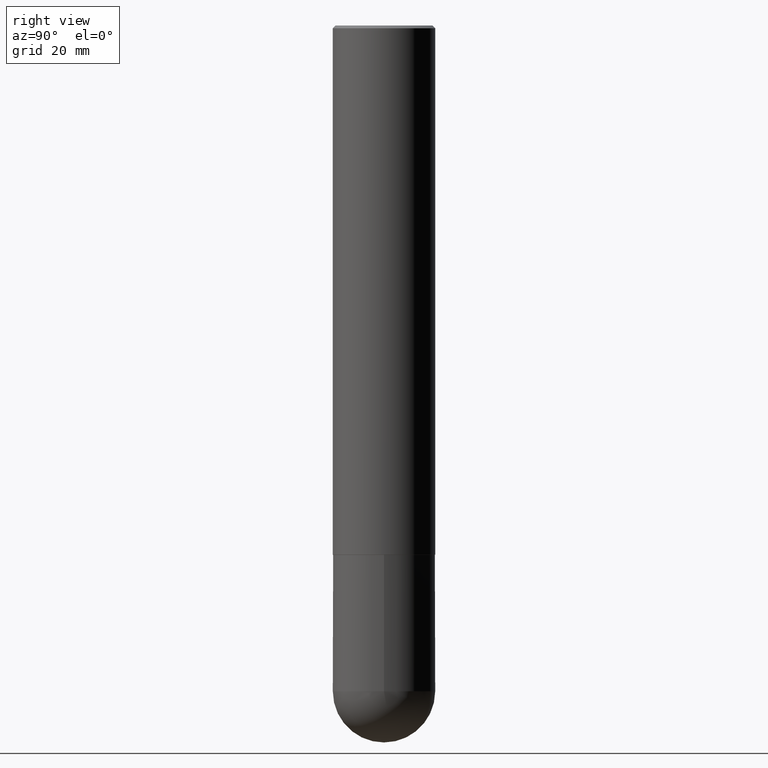
[diagram: clean part render]
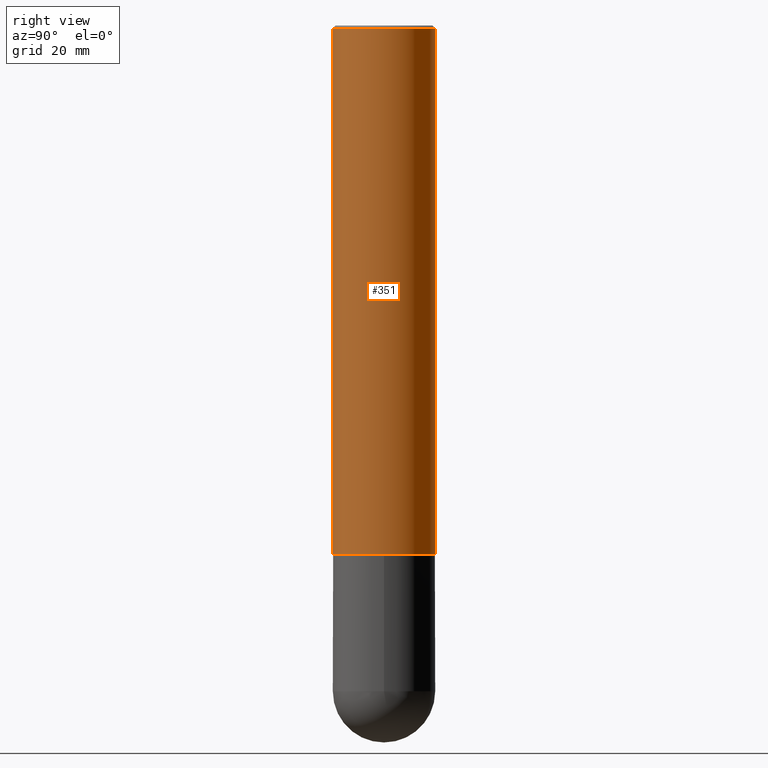
[diagram: same view with one face highlighted and labeled with its STEP entity id]
A machine part, right view. The second image highlights one B-rep face of the part: STEP entity #351.
In plain terms, the highlighted cylindrical surface (partial cylindrical patch) has radius 9.525 mm, axis along (-0, 0, 1).
Its self-contained STEP definition (entity closure, byte-faithful):
#8 = EDGE_CURVE ( 'NONE', #343, #9, #25, .T. ) ;
#9 = VERTEX_POINT ( 'NONE', #242 ) ;
#18 = VECTOR ( 'NONE', #87, 39.37007874015748143 ) ;
#20 = LINE ( 'NONE', #342, #18 ) ;
#25 = LINE ( 'NONE', #147, #122 ) ;
#31 = EDGE_LOOP ( 'NONE', ( #307, #224, #109, #71 ) ) ;
#33 = DIRECTION ( 'NONE',  ( -2.445685963754817288E-29, 3.491170356843521613E-15, 1.000000000000000000 ) ) ;
#46 = DIRECTION ( 'NONE',  ( -2.445685963754817288E-29, 3.491170356843521613E-15, 1.000000000000000000 ) ) ;
#62 = CARTESIAN_POINT ( 'NONE',  ( 2.664535259100425790E-15, 0.3749999999999870104, -3.874000000000001442 ) ) ;
#71 = ORIENTED_EDGE ( 'NONE', *, *, #8, .F. ) ;
#87 = DIRECTION ( 'NONE',  ( -2.445685963754817288E-29, 3.491170356843521613E-15, 1.000000000000000000 ) ) ;
#103 = EDGE_CURVE ( 'NONE', #9, #136, #167, .T. ) ;
#109 = ORIENTED_EDGE ( 'NONE', *, *, #103, .F. ) ;
#113 = EDGE_CURVE ( 'NONE', #343, #134, #299, .T. ) ;
#122 = VECTOR ( 'NONE', #180, 39.37007874015748143 ) ;
#133 = CARTESIAN_POINT ( 'NONE',  ( 9.474587423586162919E-29, -1.352479396241180209E-14, -3.874000000000000110 ) ) ;
#134 = VERTEX_POINT ( 'NONE', #62 ) ;
#136 = VERTEX_POINT ( 'NONE', #228 ) ;
#147 = CARTESIAN_POINT ( 'NONE',  ( -2.618611004132351989E-15, -0.3750000000000002776, 1.309188883816321591E-15 ) ) ;
#164 = DIRECTION ( 'NONE',  ( -2.445685963754817288E-29, 3.491170356843521613E-15, 1.000000000000000000 ) ) ;
#167 = CIRCLE ( 'NONE', #347, 0.3750000000000001110 ) ;
#172 = CARTESIAN_POINT ( 'NONE',  ( 0.000000000000000000, 0.000000000000000000, 0.000000000000000000 ) ) ;
#180 = DIRECTION ( 'NONE',  ( -2.445685963754817288E-29, 3.491170356843521613E-15, 1.000000000000000000 ) ) ;
#181 = AXIS2_PLACEMENT_3D ( 'NONE', #172, #46, #282 ) ;
#199 = AXIS2_PLACEMENT_3D ( 'NONE', #133, #33, #358 ) ;
#224 = ORIENTED_EDGE ( 'NONE', *, *, #328, .T. ) ;
#228 = CARTESIAN_POINT ( 'NONE',  ( 2.618611004132351200E-15, 0.3750000000000000555, -0.02000000000000139513 ) ) ;
#242 = CARTESIAN_POINT ( 'NONE',  ( -2.572686749164324336E-15, -0.3750000000000001665, -0.01999999999999877570 ) ) ;
#282 = DIRECTION ( 'NONE',  ( -6.982962677686266711E-15, -1.000000000000000000, 3.491170356843521613E-15 ) ) ;
#284 = CARTESIAN_POINT ( 'NONE',  ( -2.618611004132258903E-15, -0.3750000000000140443, -3.873999999999999222 ) ) ;
#299 = CIRCLE ( 'NONE', #199, 0.3750000000000004996 ) ;
#307 = ORIENTED_EDGE ( 'NONE', *, *, #113, .T. ) ;
#328 = EDGE_CURVE ( 'NONE', #134, #136, #20, .T. ) ;
#334 = CARTESIAN_POINT ( 'NONE',  ( 4.891371927509655875E-31, -6.982340713687073104E-17, -0.02000000000000008715 ) ) ;
#339 = CYLINDRICAL_SURFACE ( 'NONE', #181, 0.3750000000000002776 ) ;
#342 = CARTESIAN_POINT ( 'NONE',  ( 2.664535259100377275E-15, 0.3750000000000002776, -1.309188883816321591E-15 ) ) ;
#343 = VERTEX_POINT ( 'NONE', #284 ) ;
#347 = AXIS2_PLACEMENT_3D ( 'NONE', #334, #164, #361 ) ;
#351 = ADVANCED_FACE ( 'NONE', ( #399 ), #339, .T. ) ;
#358 = DIRECTION ( 'NONE',  ( -6.982962677686266711E-15, -1.000000000000000000, 2.913971193241876822E-15 ) ) ;
#361 = DIRECTION ( 'NONE',  ( -6.982962677686265922E-15, -1.000000000000000000, 3.494488891895535640E-15 ) ) ;
#399 = FACE_OUTER_BOUND ( 'NONE', #31, .T. ) ;